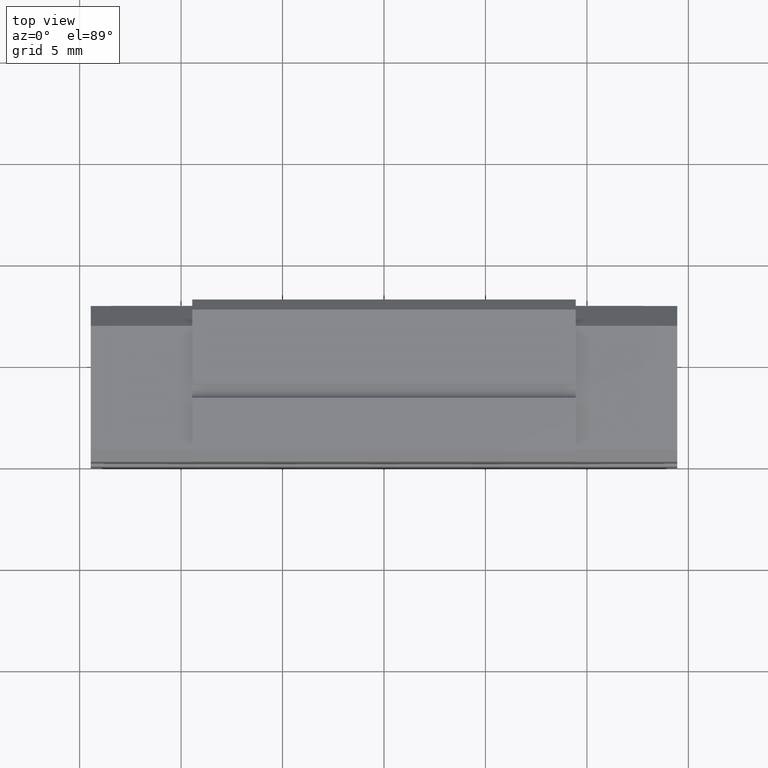
[diagram: clean part render]
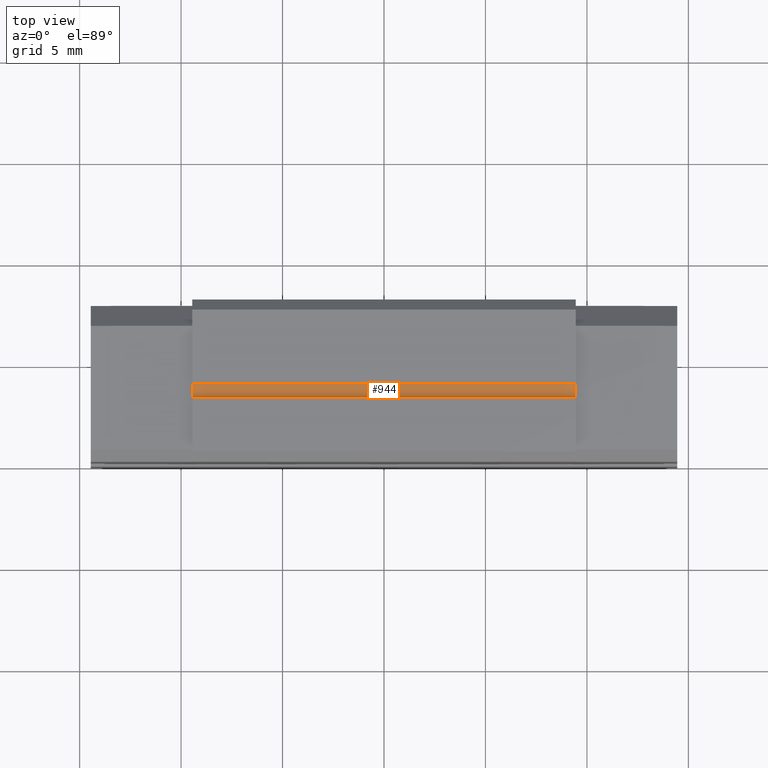
[diagram: same view with one face highlighted and labeled with its STEP entity id]
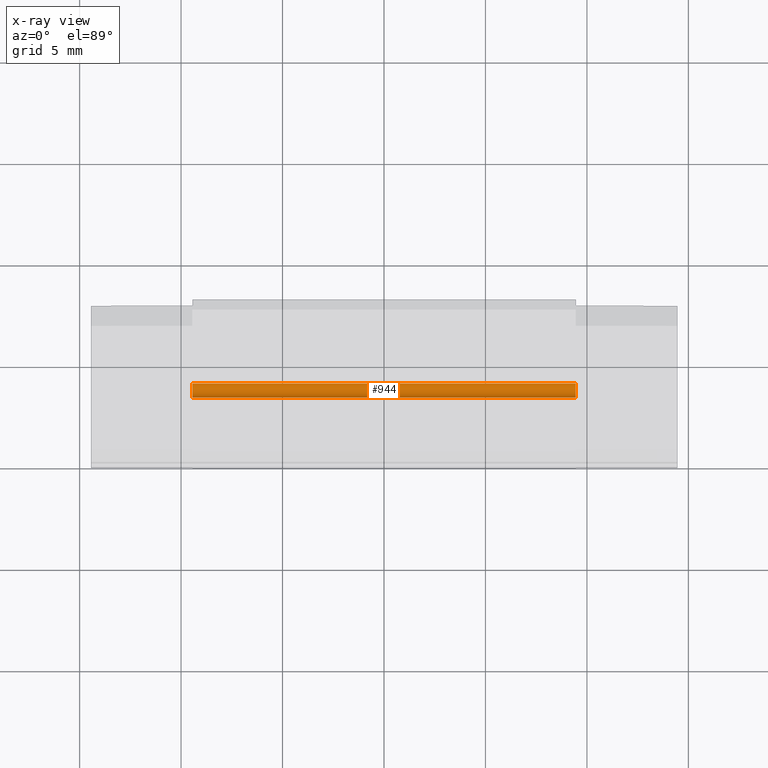
[diagram: x-ray of the same camera — body ghosted, the highlighted face saturated]
A machine part, top view. The second image highlights one B-rep face of the part: STEP entity #944.
The next image is the same camera in x-ray: the body ghosted, the highlighted face saturated — about 0% of this face is hidden behind the body in this view.
In plain terms, the highlighted cylindrical surface (edge-blend (fillet) strip) has radius 0.4 mm, axis along (-1, 0, 0).
Its self-contained STEP definition (entity closure, byte-faithful):
#729 = VERTEX_POINT ( 'NONE', #1674 ) ;
#741 = EDGE_CURVE ( 'NONE', #729, #1067, #1723, .T. ) ;
#900 = EDGE_CURVE ( 'NONE', #904, #903, #1963, .T. ) ;
#903 = VERTEX_POINT ( 'NONE', #1953 ) ;
#904 = VERTEX_POINT ( 'NONE', #1952 ) ;
#921 = VERTEX_POINT ( 'NONE', #1997 ) ;
#934 = EDGE_CURVE ( 'NONE', #921, #936, #2035, .T. ) ;
#936 = VERTEX_POINT ( 'NONE', #2031 ) ;
#941 = ORIENTED_EDGE ( 'NONE', *, *, #971, .F. ) ;
#942 = EDGE_CURVE ( 'NONE', #903, #1067, #2021, .T. ) ;
#943 = ORIENTED_EDGE ( 'NONE', *, *, #900, .F. ) ;
#944 = ADVANCED_FACE ( 'NONE', ( #2017 ), #2016, .F. ) ;
#952 = ORIENTED_EDGE ( 'NONE', *, *, #741, .T. ) ;
#953 = ORIENTED_EDGE ( 'NONE', *, *, #973, .T. ) ;
#965 = EDGE_LOOP ( 'NONE', ( #975, #953, #952, #982, #943, #941 ) ) ;
#971 = EDGE_CURVE ( 'NONE', #921, #904, #2111, .T. ) ;
#973 = EDGE_CURVE ( 'NONE', #936, #729, #2106, .T. ) ;
#975 = ORIENTED_EDGE ( 'NONE', *, *, #934, .T. ) ;
#982 = ORIENTED_EDGE ( 'NONE', *, *, #942, .F. ) ;
#1067 = VERTEX_POINT ( 'NONE', #2245 ) ;
#1674 = CARTESIAN_POINT ( 'NONE',  ( -9.449999999999999300, 3.499999999999999600, 9.800000000000000700 ) ) ;
#1719 = DIRECTION ( 'NONE',  ( 0.0000000000000000000, 0.0000000000000000000, -1.000000000000000000 ) ) ;
#1720 = DIRECTION ( 'NONE',  ( -1.000000000000000000, 0.0000000000000000000, 0.0000000000000000000 ) ) ;
#1721 = CARTESIAN_POINT ( 'NONE',  ( -9.449999999999999300, 3.499999999999999600, 10.20000000000000300 ) ) ;
#1722 = AXIS2_PLACEMENT_3D ( 'NONE', #1721, #1720, #1719 ) ;
#1723 = CIRCLE ( 'NONE', #1722, 0.3999999999999993000 ) ;
#1952 = CARTESIAN_POINT ( 'NONE',  ( 9.449999999999999300, 3.499999999999999600, 9.800000000000000700 ) ) ;
#1953 = CARTESIAN_POINT ( 'NONE',  ( 9.449999999999999300, 3.153589838486225500, 10.00000000000000000 ) ) ;
#1959 = DIRECTION ( 'NONE',  ( 0.0000000000000000000, 0.0000000000000000000, -1.000000000000000000 ) ) ;
#1960 = DIRECTION ( 'NONE',  ( -1.000000000000000000, 0.0000000000000000000, 0.0000000000000000000 ) ) ;
#1961 = CARTESIAN_POINT ( 'NONE',  ( 9.449999999999999300, 3.499999999999999600, 10.20000000000000300 ) ) ;
#1962 = AXIS2_PLACEMENT_3D ( 'NONE', #1961, #1960, #1959 ) ;
#1963 = CIRCLE ( 'NONE', #1962, 0.3999999999999993000 ) ;
#1997 = CARTESIAN_POINT ( 'NONE',  ( 9.449999999999999300, 3.846410161513774000, 10.00000000000000000 ) ) ;
#2016 = CYLINDRICAL_SURFACE ( 'NONE', #2074, 0.3999999999999993000 ) ;
#2017 = FACE_OUTER_BOUND ( 'NONE', #965, .T. ) ;
#2018 = DIRECTION ( 'NONE',  ( -1.000000000000000000, 0.0000000000000000000, 0.0000000000000000000 ) ) ;
#2019 = VECTOR ( 'NONE', #2018, 1000.000000000000000 ) ;
#2020 = CARTESIAN_POINT ( 'NONE',  ( 9.449999999999999300, 3.153589838486225500, 10.00000000000000000 ) ) ;
#2021 = LINE ( 'NONE', #2020, #2019 ) ;
#2031 = CARTESIAN_POINT ( 'NONE',  ( -9.449999999999999300, 3.846410161513774000, 10.00000000000000000 ) ) ;
#2032 = DIRECTION ( 'NONE',  ( -1.000000000000000000, 0.0000000000000000000, 0.0000000000000000000 ) ) ;
#2033 = VECTOR ( 'NONE', #2032, 1000.000000000000000 ) ;
#2034 = CARTESIAN_POINT ( 'NONE',  ( 9.449999999999999300, 3.846410161513774000, 10.00000000000000000 ) ) ;
#2035 = LINE ( 'NONE', #2034, #2033 ) ;
#2071 = DIRECTION ( 'NONE',  ( 0.0000000000000000000, 0.0000000000000000000, 1.000000000000000000 ) ) ;
#2072 = DIRECTION ( 'NONE',  ( -1.000000000000000000, 0.0000000000000000000, 0.0000000000000000000 ) ) ;
#2073 = CARTESIAN_POINT ( 'NONE',  ( 9.449999999999999300, 3.499999999999999600, 10.20000000000000300 ) ) ;
#2074 = AXIS2_PLACEMENT_3D ( 'NONE', #2073, #2072, #2071 ) ;
#2102 = DIRECTION ( 'NONE',  ( 0.0000000000000000000, 0.0000000000000000000, -1.000000000000000000 ) ) ;
#2103 = DIRECTION ( 'NONE',  ( -1.000000000000000000, 0.0000000000000000000, 0.0000000000000000000 ) ) ;
#2104 = CARTESIAN_POINT ( 'NONE',  ( -9.449999999999999300, 3.499999999999999600, 10.20000000000000300 ) ) ;
#2105 = AXIS2_PLACEMENT_3D ( 'NONE', #2104, #2103, #2102 ) ;
#2106 = CIRCLE ( 'NONE', #2105, 0.3999999999999993000 ) ;
#2107 = DIRECTION ( 'NONE',  ( 0.0000000000000000000, 0.0000000000000000000, -1.000000000000000000 ) ) ;
#2108 = DIRECTION ( 'NONE',  ( -1.000000000000000000, 0.0000000000000000000, 0.0000000000000000000 ) ) ;
#2109 = CARTESIAN_POINT ( 'NONE',  ( 9.449999999999999300, 3.499999999999999600, 10.20000000000000300 ) ) ;
#2110 = AXIS2_PLACEMENT_3D ( 'NONE', #2109, #2108, #2107 ) ;
#2111 = CIRCLE ( 'NONE', #2110, 0.3999999999999993000 ) ;
#2245 = CARTESIAN_POINT ( 'NONE',  ( -9.449999999999999300, 3.153589838486225500, 10.00000000000000000 ) ) ;